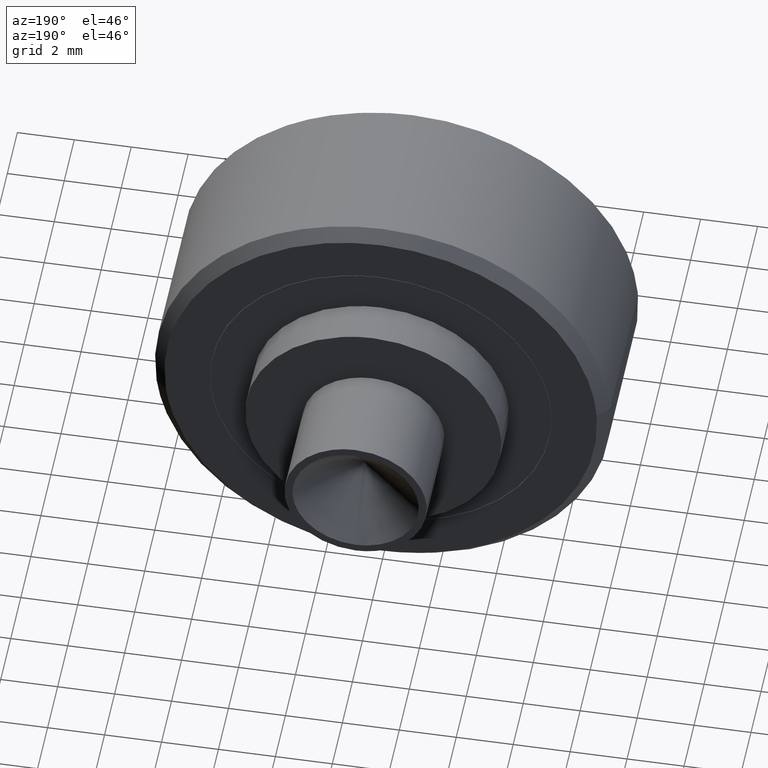
[diagram: clean part render]
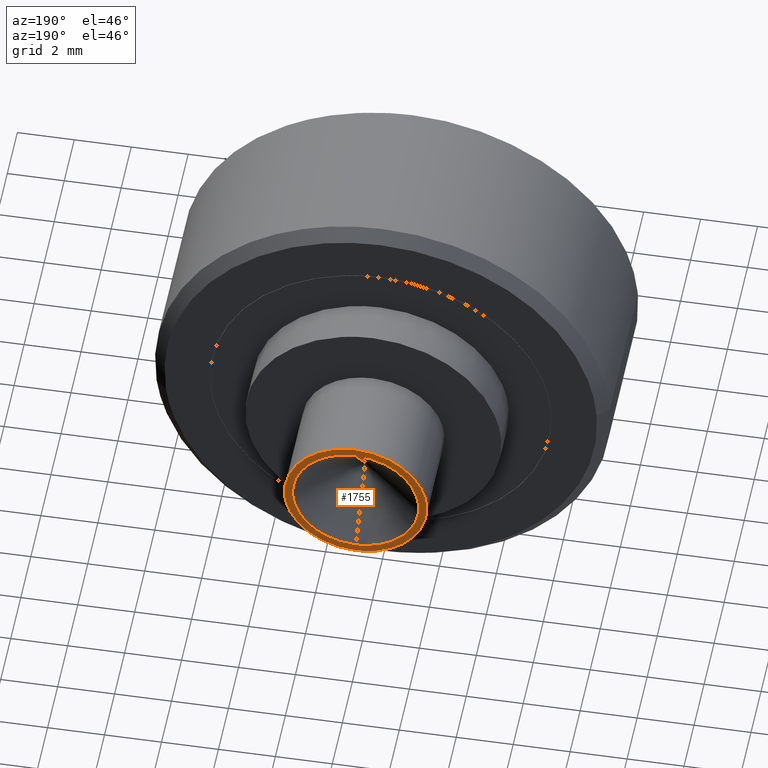
[diagram: same view with one face highlighted and labeled with its STEP entity id]
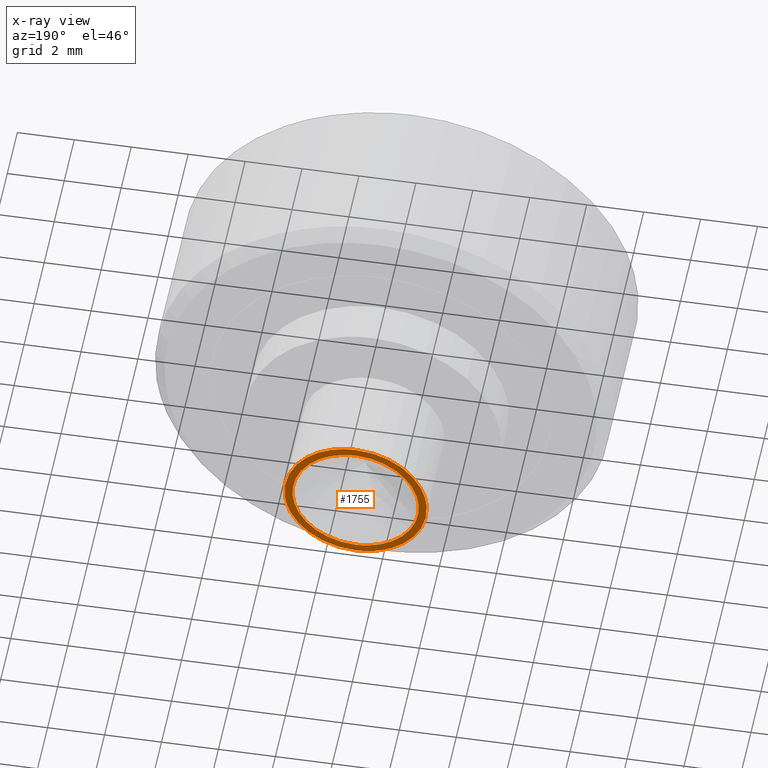
[diagram: x-ray of the same camera — body ghosted, the highlighted face saturated]
A machine part, auxiliary view. The second image highlights one B-rep face of the part: STEP entity #1755.
The next image is the same camera in x-ray: the body ghosted, the highlighted face saturated — about 0% of this face is hidden behind the body in this view.
In plain terms, the highlighted face is a freeform B-spline surface patch.
Its self-contained STEP definition (entity closure, byte-faithful):
#271=CARTESIAN_POINT('',(2.482524283771402,11.350000000000000,-0.295081650513167));
#272=VERTEX_POINT('',#271);
#278=CARTESIAN_POINT('',(0.0,11.350000000000000,2.500000000000000));
#279=VERTEX_POINT('',#278);
#280=CARTESIAN_POINT('',(2.482524283771402,11.349999999999998,-0.295081650513167));
#281=CARTESIAN_POINT('',(2.500000000000000,11.350000000000000,-0.148058310259754));
#282=CARTESIAN_POINT('',(2.500000000000000,11.350000000000000,-1.467165E-016));
#283=CARTESIAN_POINT('',(2.500000000000000,11.350000000000001,2.500000000000000));
#284=CARTESIAN_POINT('',(0.0,11.350000000000000,2.500000000000000));
#292=(BOUNDED_CURVE()B_SPLINE_CURVE(2,(#280,#281,#282,#283,#284),.UNSPECIFIED.,.F.,.U.)B_SPLINE_CURVE_WITH_KNOTS((3,2,3),(0.229562741476258,0.250000000000000,0.500000000000000),.UNSPECIFIED.)CURVE()GEOMETRIC_REPRESENTATION_ITEM()RATIONAL_B_SPLINE_CURVE((0.956027279402328,0.976056262269034,1.0,0.707106781186548,1.0))REPRESENTATION_ITEM(''));
#293=EDGE_CURVE('',#272,#279,#292,.T.);
#295=CARTESIAN_POINT('',(-2.495336996053892,11.350000000000000,0.152621348849819));
#296=VERTEX_POINT('',#295);
#297=CARTESIAN_POINT('',(0.0,11.350000000000000,2.500000000000000));
#298=CARTESIAN_POINT('',(-2.351765167240298,11.350000000000001,2.500000000000000));
#299=CARTESIAN_POINT('',(-2.495336996053891,11.350000000000007,0.152621348849819));
#307=(BOUNDED_CURVE()B_SPLINE_CURVE(2,(#297,#298,#299),.UNSPECIFIED.,.F.,.U.)B_SPLINE_CURVE_WITH_KNOTS((3,3),(0.500000000000000,0.739332962240215),.UNSPECIFIED.)CURVE()GEOMETRIC_REPRESENTATION_ITEM()RATIONAL_B_SPLINE_CURVE((1.0,0.719603993285220,0.976072041669444))REPRESENTATION_ITEM(''));
#308=EDGE_CURVE('',#279,#296,#307,.T.);
#386=CARTESIAN_POINT('',(0.0,11.350000000000000,-2.500000000000000));
#387=VERTEX_POINT('',#386);
#388=CARTESIAN_POINT('',(-2.495336996053891,11.350000000000007,0.152621348849819));
#389=CARTESIAN_POINT('',(-2.500000000000000,11.349999999999998,0.076381908259184));
#390=CARTESIAN_POINT('',(-2.500000000000000,11.350000000000000,-1.467165E-016));
#391=CARTESIAN_POINT('',(-2.500000000000000,11.350000000000001,-2.500000000000000));
#392=CARTESIAN_POINT('',(0.0,11.350000000000000,-2.500000000000000));
#400=(BOUNDED_CURVE()B_SPLINE_CURVE(2,(#388,#389,#390,#391,#392),.UNSPECIFIED.,.F.,.U.)B_SPLINE_CURVE_WITH_KNOTS((3,2,3),(0.739332962240215,0.750000000000000,1.0),.UNSPECIFIED.)CURVE()GEOMETRIC_REPRESENTATION_ITEM()RATIONAL_B_SPLINE_CURVE((0.976072041669444,0.987502787901328,1.0,0.707106781186548,1.0))REPRESENTATION_ITEM(''));
#401=EDGE_CURVE('',#296,#387,#400,.T.);
#403=CARTESIAN_POINT('',(0.0,11.350000000000000,-2.500000000000000));
#404=CARTESIAN_POINT('',(2.220439860243806,11.350000000000001,-2.500000000000000));
#405=CARTESIAN_POINT('',(2.482524283771402,11.349999999999998,-0.295081650513167));
#413=(BOUNDED_CURVE()B_SPLINE_CURVE(2,(#403,#404,#405),.UNSPECIFIED.,.F.,.U.)B_SPLINE_CURVE_WITH_KNOTS((3,3),(0.0,0.229562741476258),.UNSPECIFIED.)CURVE()GEOMETRIC_REPRESENTATION_ITEM()RATIONAL_B_SPLINE_CURVE((1.0,0.731050518917513,0.956027279402328))REPRESENTATION_ITEM(''));
#414=EDGE_CURVE('',#387,#272,#413,.T.);
#1656=CARTESIAN_POINT('',(9.050483E-017,11.350000000000000,-2.217157287525388));
#1657=VERTEX_POINT('',#1656);
#1658=CARTESIAN_POINT('',(-9.050483E-017,11.350000000000000,2.217157287525388));
#1659=VERTEX_POINT('',#1658);
#1660=CARTESIAN_POINT('',(0.0,11.350000000000000,-2.217157287525385));
#1661=CARTESIAN_POINT('',(2.217157287525386,11.350000000000001,-2.217157287525386));
#1662=CARTESIAN_POINT('',(2.217157287525385,11.350000000000000,-1.467165E-016));
#1663=CARTESIAN_POINT('',(2.217157287525386,11.350000000000001,2.217157287525386));
#1664=CARTESIAN_POINT('',(0.0,11.350000000000000,2.217157287525385));
#1672=(BOUNDED_CURVE()B_SPLINE_CURVE(2,(#1660,#1661,#1662,#1663,#1664),.UNSPECIFIED.,.F.,.U.)B_SPLINE_CURVE_WITH_KNOTS((3,2,3),(0.0,0.500000000000000,1.0),.UNSPECIFIED.)CURVE()GEOMETRIC_REPRESENTATION_ITEM()RATIONAL_B_SPLINE_CURVE((1.0,0.707106781186548,1.0,0.707106781186548,1.0))REPRESENTATION_ITEM(''));
#1673=EDGE_CURVE('',#1657,#1659,#1672,.T.);
#1726=CARTESIAN_POINT('',(-2.749689142531145,11.350000000000000,2.749749990309030));
#1727=CARTESIAN_POINT('',(-2.749689142531145,11.350000000000000,-2.749750124419481));
#1728=CARTESIAN_POINT('',(2.749704520529496,11.350000000000000,2.749749990309030));
#1729=CARTESIAN_POINT('',(2.749704520529496,11.350000000000000,-2.749750124419481));
#1730=B_SPLINE_SURFACE_WITH_KNOTS('',1,1,((#1726,#1728),(#1727,#1729)),.UNSPECIFIED.,.F.,.F.,.U.,(2,2),(2,2),(0.0,5.499500114728511),(0.0,5.499393663060642),.UNSPECIFIED.);
#1731=ORIENTED_EDGE('',*,*,#401,.F.);
#1732=ORIENTED_EDGE('',*,*,#308,.F.);
#1733=ORIENTED_EDGE('',*,*,#293,.F.);
#1734=ORIENTED_EDGE('',*,*,#414,.F.);
#1735=EDGE_LOOP('',(#1731,#1732,#1733,#1734));
#1736=FACE_OUTER_BOUND('',#1735,.T.);
#1737=CARTESIAN_POINT('',(0.0,11.350000000000000,2.217157287525385));
#1738=CARTESIAN_POINT('',(-2.217157287525386,11.350000000000001,2.217157287525386));
#1739=CARTESIAN_POINT('',(-2.217157287525385,11.350000000000000,-1.467165E-016));
#1740=CARTESIAN_POINT('',(-2.217157287525386,11.350000000000001,-2.217157287525386));
#1741=CARTESIAN_POINT('',(0.0,11.350000000000000,-2.217157287525385));
#1749=(BOUNDED_CURVE()B_SPLINE_CURVE(2,(#1737,#1738,#1739,#1740,#1741),.UNSPECIFIED.,.F.,.U.)B_SPLINE_CURVE_WITH_KNOTS((3,2,3),(0.0,0.500000000000000,1.0),.UNSPECIFIED.)CURVE()GEOMETRIC_REPRESENTATION_ITEM()RATIONAL_B_SPLINE_CURVE((1.0,0.707106781186548,1.0,0.707106781186548,1.0))REPRESENTATION_ITEM(''));
#1750=EDGE_CURVE('',#1659,#1657,#1749,.T.);
#1751=ORIENTED_EDGE('',*,*,#1750,.T.);
#1752=ORIENTED_EDGE('',*,*,#1673,.T.);
#1753=EDGE_LOOP('',(#1751,#1752));
#1754=FACE_BOUND('',#1753,.T.);
#1755=ADVANCED_FACE('',(#1736,#1754),#1730,.F.);